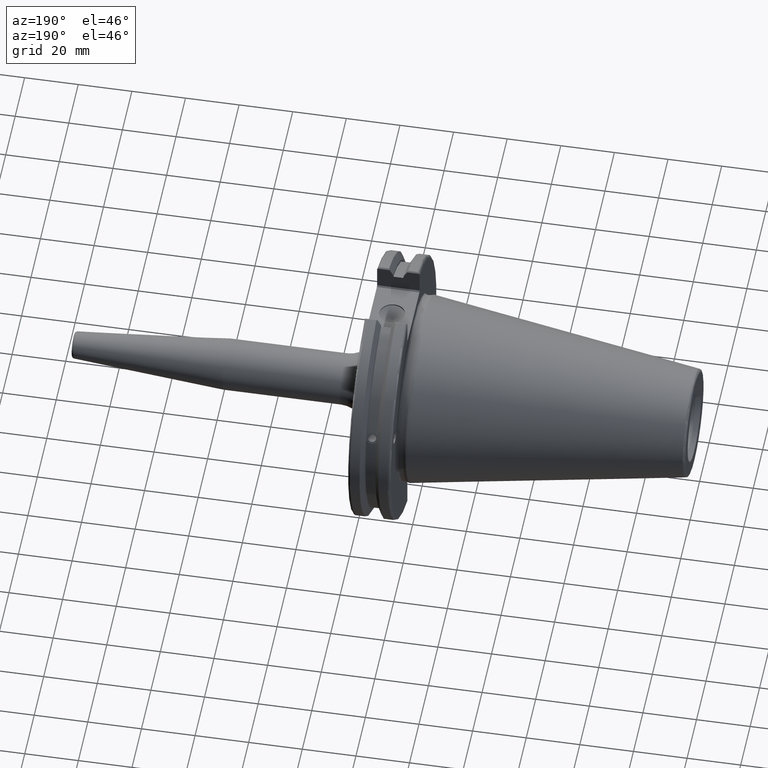
[diagram: clean part render]
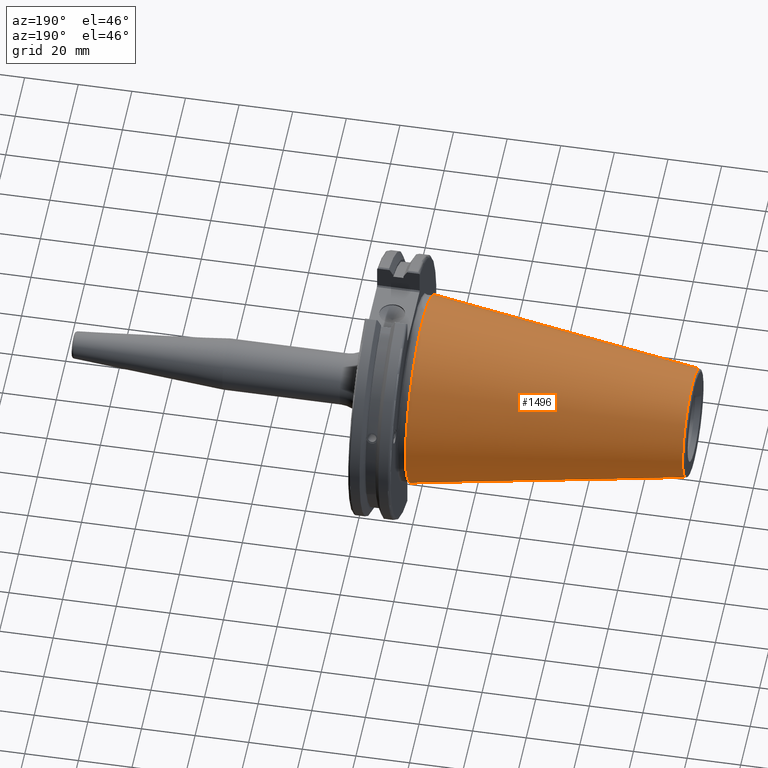
[diagram: same view with one face highlighted and labeled with its STEP entity id]
A machine part, auxiliary view. The second image highlights one B-rep face of the part: STEP entity #1496.
In plain terms, the highlighted conical surface has half-angle 8.297 deg.
Its self-contained STEP definition (entity closure, byte-faithful):
#225=LINE('',#2978,#319);
#319=VECTOR('',#2026,27.5166666666666);
#348=CONICAL_SURFACE('',#1667,27.5166666666666,0.14481249823894);
#410=FACE_OUTER_BOUND('',#511,.T.);
#511=EDGE_LOOP('',(#1300,#1301,#1302,#1303,#1304));
#598=CIRCLE('',#1661,20.233121911427);
#599=CIRCLE('',#1662,20.233121911427);
#603=CIRCLE('',#1668,34.925);
#748=VERTEX_POINT('',#2965);
#749=VERTEX_POINT('',#2966);
#752=VERTEX_POINT('',#2976);
#947=EDGE_CURVE('',#748,#749,#598,.T.);
#948=EDGE_CURVE('',#749,#748,#599,.T.);
#952=EDGE_CURVE('',#752,#752,#603,.T.);
#953=EDGE_CURVE('',#752,#749,#225,.T.);
#1300=ORIENTED_EDGE('',*,*,#952,.F.);
#1301=ORIENTED_EDGE('',*,*,#953,.T.);
#1302=ORIENTED_EDGE('',*,*,#947,.F.);
#1303=ORIENTED_EDGE('',*,*,#948,.F.);
#1304=ORIENTED_EDGE('',*,*,#953,.F.);
#1496=ADVANCED_FACE('',(#410),#348,.T.);
#1661=AXIS2_PLACEMENT_3D('',#2967,#2010,#2011);
#1662=AXIS2_PLACEMENT_3D('',#2968,#2012,#2013);
#1667=AXIS2_PLACEMENT_3D('',#2975,#2022,#2023);
#1668=AXIS2_PLACEMENT_3D('',#2977,#2024,#2025);
#2010=DIRECTION('center_axis',(-1.,0.,0.));
#2011=DIRECTION('ref_axis',(0.,-1.,3.06161699786838E-17));
#2012=DIRECTION('center_axis',(-1.,0.,0.));
#2013=DIRECTION('ref_axis',(0.,-1.,3.06161699786838E-17));
#2022=DIRECTION('center_axis',(1.,0.,0.));
#2023=DIRECTION('ref_axis',(0.,1.,0.));
#2024=DIRECTION('center_axis',(1.,0.,0.));
#2025=DIRECTION('ref_axis',(0.,0.,-1.));
#2026=DIRECTION('',(-0.989532981063281,0.144306893071729,1.76724974695192E-17));
#2965=CARTESIAN_POINT('',(-100.744306893072,-2.47784279855872E-15,20.233121911427));
#2966=CARTESIAN_POINT('',(-100.744306893072,-20.233121911427,-2.47784279855872E-15));
#2967=CARTESIAN_POINT('Origin',(-100.744306893072,0.,-3.09730349819841E-15));
#2968=CARTESIAN_POINT('Origin',(-100.744306893072,0.,-3.09730349819841E-15));
#2975=CARTESIAN_POINT('Origin',(-50.8,0.,0.));
#2976=CARTESIAN_POINT('',(-8.88178419700125E-15,-34.925,-4.27707894602213E-15));
#2977=CARTESIAN_POINT('Origin',(0.,0.,0.));
#2978=CARTESIAN_POINT('',(-50.8,-27.5166666666666,-3.3698197756538E-15));